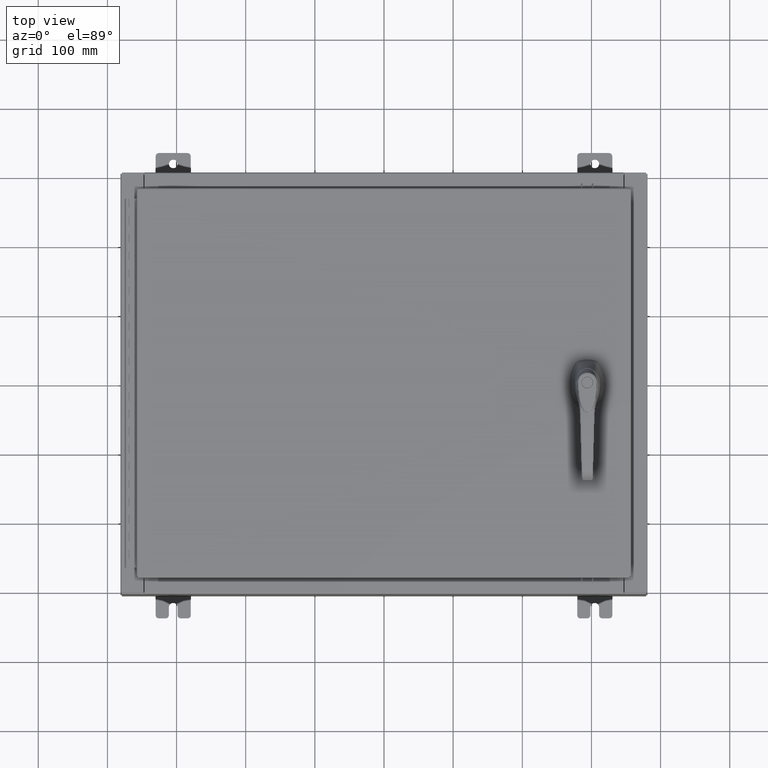
[diagram: clean part render]
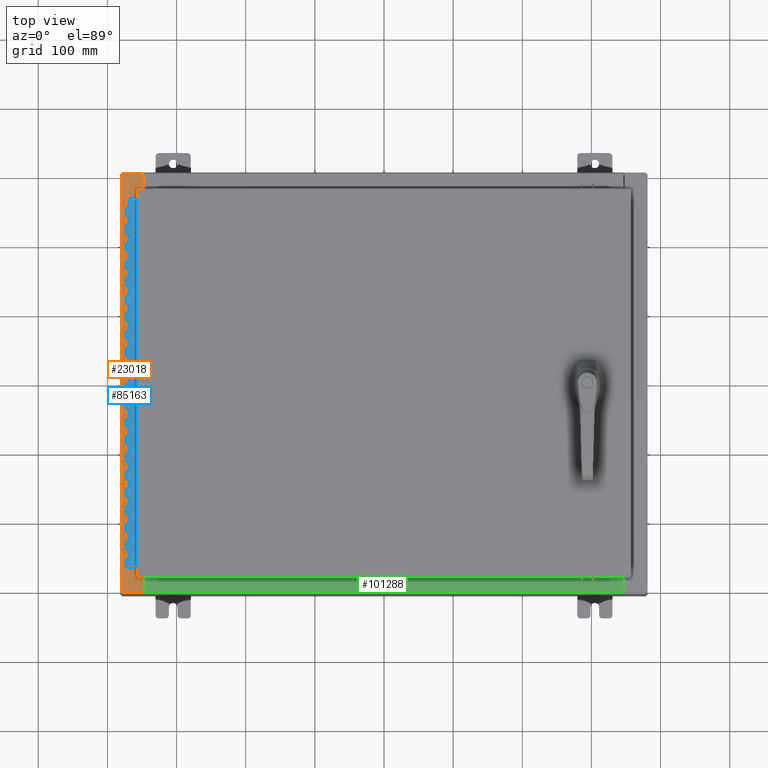
[diagram: same view with three faces highlighted in distinct colors, each labeled with its STEP entity id]
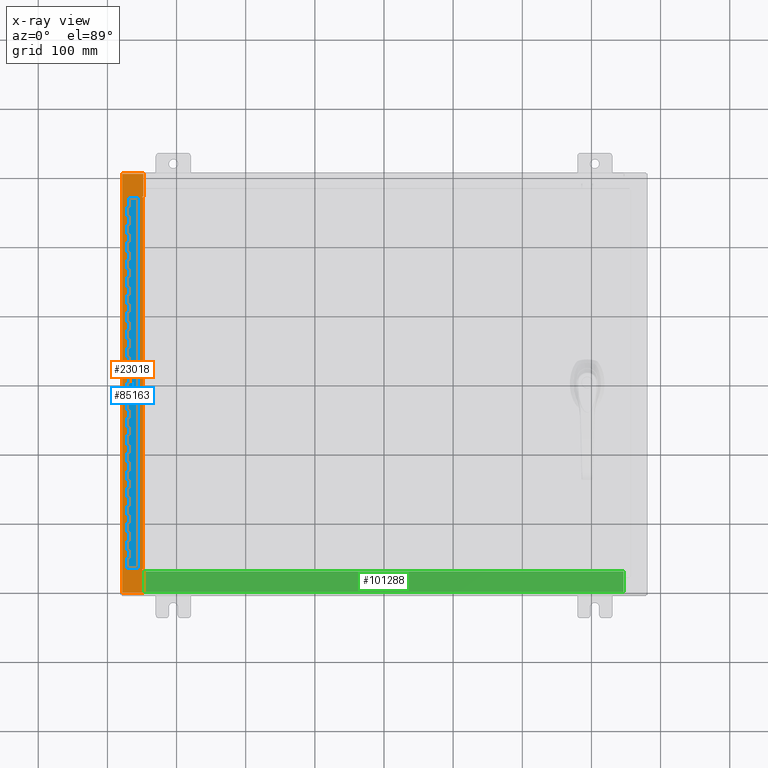
[diagram: x-ray of the same camera — body ghosted, the three highlighted faces saturated]
A machine part, top view with three faces highlighted in distinct colors.
The next image is the same camera in x-ray (body ghosted, the three faces saturated) — at least one of them is partly hidden behind the body in this view.
Their STEP definitions:

[orange] entity #23018 — the highlighted planar face has unit normal (0, 0, -1).
#674 = CARTESIAN_POINT ( 'NONE',  ( -5.679009539018309800E-014, -11.92530000000000000, 7.925300000000105700 ) ) ;
#4265 = AXIS2_PLACEMENT_3D ( 'NONE', #59564, #7143, #68329 ) ;
#6741 = LINE ( 'NONE', #674, #53255 ) ;
#7143 = DIRECTION ( 'NONE',  ( -7.132762385546384700E-015, -0.0000000000000000000, 1.000000000000000000 ) ) ;
#8149 = CIRCLE ( 'NONE', #12713, 0.01867499999999949400 ) ;
#9167 = ORIENTED_EDGE ( 'NONE', *, *, #80341, .F. ) ;
#9179 = DIRECTION ( 'NONE',  ( 1.000000000000000000, -0.0000000000000000000, 7.132762385546384700E-015 ) ) ;
#10628 = VECTOR ( 'NONE', #10648, 39.37007874015748100 ) ;
#10648 = DIRECTION ( 'NONE',  ( -1.000000000000000000, 0.0000000000000000000, 0.0000000000000000000 ) ) ;
#10823 = LINE ( 'NONE', #83739, #31301 ) ;
#12597 = DIRECTION ( 'NONE',  ( -0.0000000000000000000, -1.000000000000000000, -0.0000000000000000000 ) ) ;
#12713 = AXIS2_PLACEMENT_3D ( 'NONE', #95528, #42986, #104345 ) ;
#12978 = CARTESIAN_POINT ( 'NONE',  ( -13.75005000000002800, 10.63109999999999600, 7.925300000000007100 ) ) ;
#14035 = DIRECTION ( 'NONE',  ( -0.0000000000000000000, 1.000000000000000000, -0.0000000000000000000 ) ) ;
#15015 = VECTOR ( 'NONE', #50944, 39.37007874015748100 ) ;
#16739 = CARTESIAN_POINT ( 'NONE',  ( -5.679009539018309800E-014, 0.0000000000000000000, 7.925300000000105700 ) ) ;
#17482 = CARTESIAN_POINT ( 'NONE',  ( -13.69970000000003000, 10.63109999999999600, 7.925300000000008900 ) ) ;
#17780 = DIRECTION ( 'NONE',  ( 1.000000000000000000, 0.0000000000000000000, 0.0000000000000000000 ) ) ;
#18365 = ORIENTED_EDGE ( 'NONE', *, *, #34220, .F. ) ;
#18376 = DIRECTION ( 'NONE',  ( 1.000000000000000000, 0.0000000000000000000, 0.0000000000000000000 ) ) ;
#21334 = EDGE_CURVE ( 'NONE', #109143, #101156, #88980, .T. ) ;
#23018 = ADVANCED_FACE ( 'NONE', ( #59943 ), #77288, .F. ) ;
#23075 = CARTESIAN_POINT ( 'NONE',  ( -13.75005000000002800, 10.59374999999999800, 7.925300000000007100 ) ) ;
#23092 = ORIENTED_EDGE ( 'NONE', *, *, #83143, .T. ) ;
#23759 = ORIENTED_EDGE ( 'NONE', *, *, #102485, .F. ) ;
#25537 = DIRECTION ( 'NONE',  ( -1.000000000000000000, 0.0000000000000000000, -7.132762385546384700E-015 ) ) ;
#25644 = CIRCLE ( 'NONE', #4265, 0.01867499999999949400 ) ;
#25924 = ORIENTED_EDGE ( 'NONE', *, *, #31587, .T. ) ;
#26861 = VERTEX_POINT ( 'NONE', #42314 ) ;
#27834 = VERTEX_POINT ( 'NONE', #27950 ) ;
#27950 = CARTESIAN_POINT ( 'NONE',  ( -13.69970000000003000, 11.92529999999999800, 7.925300000000008900 ) ) ;
#28211 = EDGE_CURVE ( 'NONE', #27834, #57840, #35274, .T. ) ;
#28706 = EDGE_CURVE ( 'NONE', #88721, #93888, #57141, .T. ) ;
#28981 = EDGE_LOOP ( 'NONE', ( #23759, #25924, #33724, #38992, #23092, #39341, #52334, #18365, #55032, #9167, #77279, #36268 ) ) ;
#31126 = VERTEX_POINT ( 'NONE', #12978 ) ;
#31301 = VECTOR ( 'NONE', #14035, 39.37007874015748100 ) ;
#31587 = EDGE_CURVE ( 'NONE', #42546, #27834, #38297, .T. ) ;
#31819 = LINE ( 'NONE', #103310, #96259 ) ;
#33724 = ORIENTED_EDGE ( 'NONE', *, *, #28211, .T. ) ;
#34116 = CARTESIAN_POINT ( 'NONE',  ( -13.71270000000003000, 10.59374999999999800, 7.925300000000008900 ) ) ;
#34220 = EDGE_CURVE ( 'NONE', #93888, #109143, #25644, .T. ) ;
#35274 = LINE ( 'NONE', #110673, #58578 ) ;
#36268 = ORIENTED_EDGE ( 'NONE', *, *, #44778, .F. ) ;
#37431 = LINE ( 'NONE', #81336, #99143 ) ;
#38297 = LINE ( 'NONE', #94645, #15015 ) ;
#38992 = ORIENTED_EDGE ( 'NONE', *, *, #83577, .F. ) ;
#39341 = ORIENTED_EDGE ( 'NONE', *, *, #59962, .T. ) ;
#42314 = CARTESIAN_POINT ( 'NONE',  ( -13.69970000000003000, -11.92530000000000000, 7.925300000000008900 ) ) ;
#42546 = VERTEX_POINT ( 'NONE', #17482 ) ;
#42986 = DIRECTION ( 'NONE',  ( -7.132762385546384700E-015, -0.0000000000000000000, 1.000000000000000000 ) ) ;
#44778 = EDGE_CURVE ( 'NONE', #31126, #73736, #8149, .T. ) ;
#44781 = AXIS2_PLACEMENT_3D ( 'NONE', #16739, #78049, #25537 ) ;
#47598 = EDGE_CURVE ( 'NONE', #73736, #81059, #76462, .T. ) ;
#50903 = CARTESIAN_POINT ( 'NONE',  ( -13.75005000000002800, -10.63109999999999600, 7.925300000000007100 ) ) ;
#50944 = DIRECTION ( 'NONE',  ( 0.0000000000000000000, 1.000000000000000000, 0.0000000000000000000 ) ) ;
#52010 = VECTOR ( 'NONE', #12597, 39.37007874015748100 ) ;
#52334 = ORIENTED_EDGE ( 'NONE', *, *, #21334, .F. ) ;
#53148 = VECTOR ( 'NONE', #18376, 39.37007874015748100 ) ;
#53255 = VECTOR ( 'NONE', #9179, 39.37007874015748100 ) ;
#55032 = ORIENTED_EDGE ( 'NONE', *, *, #28706, .F. ) ;
#57141 = LINE ( 'NONE', #71830, #10628 ) ;
#57840 = VERTEX_POINT ( 'NONE', #75098 ) ;
#58578 = VECTOR ( 'NONE', #66944, 39.37007874015748100 ) ;
#59564 = CARTESIAN_POINT ( 'NONE',  ( -13.75005000000002800, -10.61242499999999800, 7.925300000000008900 ) ) ;
#59629 = DIRECTION ( 'NONE',  ( -1.000000000000000000, 0.0000000000000000000, 0.0000000000000000000 ) ) ;
#59943 = FACE_OUTER_BOUND ( 'NONE', #28981, .T. ) ;
#59962 = EDGE_CURVE ( 'NONE', #26861, #101156, #37431, .T. ) ;
#63701 = CARTESIAN_POINT ( 'NONE',  ( -14.91230000000002900, -11.92530000000000000, 7.925300000000000000 ) ) ;
#66944 = DIRECTION ( 'NONE',  ( -1.000000000000000000, 0.0000000000000000000, -7.132762385546384700E-015 ) ) ;
#68329 = DIRECTION ( 'NONE',  ( 1.000000000000000000, 0.0000000000000000000, 0.0000000000000000000 ) ) ;
#71239 = CARTESIAN_POINT ( 'NONE',  ( -13.75005000000002800, 10.59374999999999800, 7.925300000000008900 ) ) ;
#71830 = CARTESIAN_POINT ( 'NONE',  ( -13.71270000000003000, -10.59374999999999800, 7.925300000000008900 ) ) ;
#73736 = VERTEX_POINT ( 'NONE', #23075 ) ;
#75098 = CARTESIAN_POINT ( 'NONE',  ( -14.91230000000002900, 11.92529999999999800, 7.925300000000000000 ) ) ;
#75336 = LINE ( 'NONE', #108744, #52010 ) ;
#76462 = LINE ( 'NONE', #71239, #53148 ) ;
#77279 = ORIENTED_EDGE ( 'NONE', *, *, #47598, .F. ) ;
#77288 = PLANE ( 'NONE',  #44781 ) ;
#78049 = DIRECTION ( 'NONE',  ( 7.132762385546384700E-015, 0.0000000000000000000, -1.000000000000000000 ) ) ;
#80341 = EDGE_CURVE ( 'NONE', #81059, #88721, #75336, .T. ) ;
#81059 = VERTEX_POINT ( 'NONE', #34116 ) ;
#81336 = CARTESIAN_POINT ( 'NONE',  ( -13.69970000000003000, 0.0000000000000000000, 7.925300000000008900 ) ) ;
#81715 = DIRECTION ( 'NONE',  ( 0.0000000000000000000, 1.000000000000000000, 0.0000000000000000000 ) ) ;
#83143 = EDGE_CURVE ( 'NONE', #93987, #26861, #6741, .T. ) ;
#83577 = EDGE_CURVE ( 'NONE', #93987, #57840, #10823, .T. ) ;
#83739 = CARTESIAN_POINT ( 'NONE',  ( -14.91230000000002900, 11.92529999999999800, 7.925300000000000000 ) ) ;
#87112 = CARTESIAN_POINT ( 'NONE',  ( -13.75005000000002800, -10.63109999999999600, 7.925300000000008900 ) ) ;
#88721 = VERTEX_POINT ( 'NONE', #94941 ) ;
#88980 = LINE ( 'NONE', #87112, #104029 ) ;
#93888 = VERTEX_POINT ( 'NONE', #106616 ) ;
#93987 = VERTEX_POINT ( 'NONE', #63701 ) ;
#94645 = CARTESIAN_POINT ( 'NONE',  ( -13.69970000000003000, 0.0000000000000000000, 7.925300000000008900 ) ) ;
#94941 = CARTESIAN_POINT ( 'NONE',  ( -13.71270000000003000, -10.59374999999999800, 7.925300000000008900 ) ) ;
#95528 = CARTESIAN_POINT ( 'NONE',  ( -13.75005000000002800, 10.61242499999999800, 7.925300000000008900 ) ) ;
#96259 = VECTOR ( 'NONE', #59629, 39.37007874015748100 ) ;
#99143 = VECTOR ( 'NONE', #81715, 39.37007874015748100 ) ;
#101156 = VERTEX_POINT ( 'NONE', #102927 ) ;
#102485 = EDGE_CURVE ( 'NONE', #42546, #31126, #31819, .T. ) ;
#102927 = CARTESIAN_POINT ( 'NONE',  ( -13.69970000000003000, -10.63109999999999800, 7.925300000000008900 ) ) ;
#103310 = CARTESIAN_POINT ( 'NONE',  ( -13.69970000000003000, 10.63109999999999600, 7.925300000000008900 ) ) ;
#104029 = VECTOR ( 'NONE', #17780, 39.37007874015748100 ) ;
#104345 = DIRECTION ( 'NONE',  ( 1.000000000000000000, 0.0000000000000000000, 0.0000000000000000000 ) ) ;
#106616 = CARTESIAN_POINT ( 'NONE',  ( -13.75005000000002800, -10.59374999999999800, 7.925300000000007100 ) ) ;
#108744 = CARTESIAN_POINT ( 'NONE',  ( -13.71270000000003000, 10.59374999999999800, 7.925300000000008900 ) ) ;
#109143 = VERTEX_POINT ( 'NONE', #50903 ) ;
#110673 = CARTESIAN_POINT ( 'NONE',  ( -5.679009539018309800E-014, 11.92529999999999800, 7.925300000000105700 ) ) ;

[blue] entity #85163 — the highlighted planar face has unit normal (-0, -0, 1).
#627 = EDGE_CURVE ( 'NONE', #53915, #77868, #18176, .T. ) ;
#864 = ORIENTED_EDGE ( 'NONE', *, *, #10019, .F. ) ;
#971 = FACE_OUTER_BOUND ( 'NONE', #65800, .T. ) ;
#1178 = VERTEX_POINT ( 'NONE', #112586 ) ;
#1197 = VECTOR ( 'NONE', #62709, 39.37007874015748100 ) ;
#1241 = EDGE_CURVE ( 'NONE', #87291, #112366, #78419, .T. ) ;
#1837 = CARTESIAN_POINT ( 'NONE',  ( -0.6869999999999973900, 0.8004999999999995500, -7.000000000000000000 ) ) ;
#1938 = EDGE_CURVE ( 'NONE', #88454, #47920, #16635, .T. ) ;
#2207 = VERTEX_POINT ( 'NONE', #100563 ) ;
#2222 = LINE ( 'NONE', #100368, #92670 ) ;
#2271 = DIRECTION ( 'NONE',  ( 0.0000000000000000000, 0.0000000000000000000, 1.000000000000000000 ) ) ;
#2473 = DIRECTION ( 'NONE',  ( 0.0000000000000000000, 0.0000000000000000000, 1.000000000000000000 ) ) ;
#2726 = CARTESIAN_POINT ( 'NONE',  ( -0.6869999999999982800, 0.5504999999999997700, -18.50000000000000000 ) ) ;
#2854 = VERTEX_POINT ( 'NONE', #101694 ) ;
#2950 = DIRECTION ( 'NONE',  ( -3.389037039080723100E-015, -1.000000000000000000, 0.0000000000000000000 ) ) ;
#3006 = ORIENTED_EDGE ( 'NONE', *, *, #23876, .T. ) ;
#3151 = CARTESIAN_POINT ( 'NONE',  ( -0.6869999999999982800, 0.5504999999999997700, -5.500000000000000000 ) ) ;
#3188 = VECTOR ( 'NONE', #2271, 39.37007874015748100 ) ;
#3438 = VERTEX_POINT ( 'NONE', #7222 ) ;
#3622 = DIRECTION ( 'NONE',  ( 0.0000000000000000000, 0.0000000000000000000, 1.000000000000000000 ) ) ;
#3772 = EDGE_CURVE ( 'NONE', #65507, #16257, #86342, .T. ) ;
#3862 = VECTOR ( 'NONE', #76698, 39.37007874015748100 ) ;
#4483 = LINE ( 'NONE', #63074, #71574 ) ;
#4719 = DIRECTION ( 'NONE',  ( -3.389037039080723100E-015, -1.000000000000000000, 0.0000000000000000000 ) ) ;
#4805 = LINE ( 'NONE', #112660, #48588 ) ;
#5349 = CARTESIAN_POINT ( 'NONE',  ( -0.6869999999999982800, 0.5504999999999997700, -13.50000000000000000 ) ) ;
#5382 = LINE ( 'NONE', #21788, #25869 ) ;
#5793 = ORIENTED_EDGE ( 'NONE', *, *, #110977, .T. ) ;
#6036 = EDGE_CURVE ( 'NONE', #101429, #26097, #17523, .T. ) ;
#6386 = EDGE_CURVE ( 'NONE', #79633, #71993, #21600, .T. ) ;
#6648 = VERTEX_POINT ( 'NONE', #84459 ) ;
#7222 = CARTESIAN_POINT ( 'NONE',  ( -0.6869999999999982800, 0.5504999999999997700, -15.50000000000000000 ) ) ;
#7436 = EDGE_CURVE ( 'NONE', #95110, #77868, #21484, .T. ) ;
#7506 = CARTESIAN_POINT ( 'NONE',  ( -0.6869999999999982800, 0.5504999999999997700, -16.50000000000000000 ) ) ;
#7520 = EDGE_CURVE ( 'NONE', #26097, #6648, #106486, .T. ) ;
#7595 = EDGE_CURVE ( 'NONE', #71079, #55391, #80405, .T. ) ;
#7912 = EDGE_CURVE ( 'NONE', #95110, #59600, #84481, .T. ) ;
#8052 = VECTOR ( 'NONE', #14966, 39.37007874015748100 ) ;
#8217 = ORIENTED_EDGE ( 'NONE', *, *, #47671, .F. ) ;
#8234 = ORIENTED_EDGE ( 'NONE', *, *, #111167, .F. ) ;
#8414 = LINE ( 'NONE', #90729, #52179 ) ;
#8843 = CARTESIAN_POINT ( 'NONE',  ( -0.6869999999999973900, 0.8004999999999995500, -14.00000000000000000 ) ) ;
#9178 = VERTEX_POINT ( 'NONE', #38736 ) ;
#9275 = LINE ( 'NONE', #43143, #55820 ) ;
#9383 = LINE ( 'NONE', #92817, #3862 ) ;
#9592 = ORIENTED_EDGE ( 'NONE', *, *, #79777, .F. ) ;
#9708 = ORIENTED_EDGE ( 'NONE', *, *, #113352, .F. ) ;
#9713 = EDGE_CURVE ( 'NONE', #65507, #30735, #34914, .T. ) ;
#9892 = ORIENTED_EDGE ( 'NONE', *, *, #80921, .F. ) ;
#9915 = VERTEX_POINT ( 'NONE', #55414 ) ;
#9981 = CARTESIAN_POINT ( 'NONE',  ( -0.6869999999999973900, 0.8004999999999995500, -19.50000000000000000 ) ) ;
#10019 = EDGE_CURVE ( 'NONE', #78632, #87291, #41677, .T. ) ;
#10519 = CARTESIAN_POINT ( 'NONE',  ( -0.6869999999999978300, 0.6754999999999996600, -8.000000000000000000 ) ) ;
#10614 = DIRECTION ( 'NONE',  ( -3.389037039080723100E-015, -1.000000000000000000, 0.0000000000000000000 ) ) ;
#10664 = CARTESIAN_POINT ( 'NONE',  ( -0.6869999999999982800, 0.5504999999999997700, -17.99999999999999600 ) ) ;
#10996 = DIRECTION ( 'NONE',  ( 0.0000000000000000000, -0.0000000000000000000, -1.000000000000000000 ) ) ;
#11003 = LINE ( 'NONE', #111840, #104156 ) ;
#11017 = ORIENTED_EDGE ( 'NONE', *, *, #14987, .F. ) ;
#11187 = CARTESIAN_POINT ( 'NONE',  ( -0.6869999999999998300, 0.07549999999999991400, -21.00000000000000000 ) ) ;
#11325 = CARTESIAN_POINT ( 'NONE',  ( -0.6869999999999978300, 0.6754999999999996600, -14.49999999999999800 ) ) ;
#11342 = VECTOR ( 'NONE', #46912, 39.37007874015748100 ) ;
#11555 = DIRECTION ( 'NONE',  ( 0.0000000000000000000, -0.0000000000000000000, -1.000000000000000000 ) ) ;
#11706 = EDGE_CURVE ( 'NONE', #71993, #54439, #2222, .T. ) ;
#11755 = CARTESIAN_POINT ( 'NONE',  ( -0.6869999999999978300, 0.6754999999999996600, -1.000000000000000000 ) ) ;
#11843 = ORIENTED_EDGE ( 'NONE', *, *, #7595, .F. ) ;
#12111 = DIRECTION ( 'NONE',  ( 3.389037039080723100E-015, 1.000000000000000000, -0.0000000000000000000 ) ) ;
#12133 = DIRECTION ( 'NONE',  ( -3.389037039080723100E-015, -1.000000000000000000, 0.0000000000000000000 ) ) ;
#12185 = DIRECTION ( 'NONE',  ( -3.389037039080723100E-015, -1.000000000000000000, 0.0000000000000000000 ) ) ;
#12431 = ORIENTED_EDGE ( 'NONE', *, *, #68960, .F. ) ;
#12631 = LINE ( 'NONE', #64920, #33139 ) ;
#12758 = DIRECTION ( 'NONE',  ( 3.389037039080723100E-015, 1.000000000000000000, -0.0000000000000000000 ) ) ;
#12827 = ORIENTED_EDGE ( 'NONE', *, *, #47688, .F. ) ;
#12834 = VERTEX_POINT ( 'NONE', #46053 ) ;
#12862 = CARTESIAN_POINT ( 'NONE',  ( -0.6869999999999973900, 0.8004999999999995500, -2.500000000000000000 ) ) ;
#13012 = DIRECTION ( 'NONE',  ( 0.0000000000000000000, 0.0000000000000000000, 1.000000000000000000 ) ) ;
#13052 = DIRECTION ( 'NONE',  ( 0.0000000000000000000, 0.0000000000000000000, 1.000000000000000000 ) ) ;
#13198 = VERTEX_POINT ( 'NONE', #59047 ) ;
#13534 = CARTESIAN_POINT ( 'NONE',  ( -0.6869999999999978300, 0.6754999999999996600, -20.00000000000000000 ) ) ;
#13538 = VECTOR ( 'NONE', #80224, 39.37007874015748100 ) ;
#13548 = DIRECTION ( 'NONE',  ( 0.0000000000000000000, -0.0000000000000000000, -1.000000000000000000 ) ) ;
#13636 = DIRECTION ( 'NONE',  ( 3.389037039080723100E-015, 1.000000000000000000, -0.0000000000000000000 ) ) ;
#14193 = LINE ( 'NONE', #63314, #16893 ) ;
#14202 = DIRECTION ( 'NONE',  ( -3.389037039080723100E-015, -1.000000000000000000, 0.0000000000000000000 ) ) ;
#14354 = EDGE_CURVE ( 'NONE', #73159, #68515, #61025, .T. ) ;
#14643 = ORIENTED_EDGE ( 'NONE', *, *, #39883, .F. ) ;
#14966 = DIRECTION ( 'NONE',  ( 0.0000000000000000000, 0.0000000000000000000, 1.000000000000000000 ) ) ;
#14987 = EDGE_CURVE ( 'NONE', #88737, #62724, #4805, .T. ) ;
#15060 = VECTOR ( 'NONE', #111388, 39.37007874015748100 ) ;
#15151 = DIRECTION ( 'NONE',  ( 3.389037039080723100E-015, 1.000000000000000000, -0.0000000000000000000 ) ) ;
#15575 = CARTESIAN_POINT ( 'NONE',  ( -0.6869999999999978300, 0.6754999999999996600, -5.000000000000000000 ) ) ;
#16211 = VECTOR ( 'NONE', #99117, 39.37007874015748100 ) ;
#16215 = LINE ( 'NONE', #80960, #83407 ) ;
#16257 = VERTEX_POINT ( 'NONE', #91353 ) ;
#16375 = ORIENTED_EDGE ( 'NONE', *, *, #1938, .F. ) ;
#16424 = LINE ( 'NONE', #85490, #36989 ) ;
#16530 = CARTESIAN_POINT ( 'NONE',  ( -0.6869999999999978300, 0.6754999999999996600, -7.000000000000000000 ) ) ;
#16531 = LINE ( 'NONE', #98184, #34369 ) ;
#16635 = LINE ( 'NONE', #85839, #39932 ) ;
#16893 = VECTOR ( 'NONE', #45289, 39.37007874015748100 ) ;
#17520 = VECTOR ( 'NONE', #38744, 39.37007874015748100 ) ;
#17523 = LINE ( 'NONE', #72591, #38074 ) ;
#17640 = LINE ( 'NONE', #24206, #108182 ) ;
#17705 = CARTESIAN_POINT ( 'NONE',  ( -0.6869999999999978300, 0.6754999999999996600, -14.00000000000000000 ) ) ;
#17728 = VECTOR ( 'NONE', #52125, 39.37007874015748100 ) ;
#17779 = ORIENTED_EDGE ( 'NONE', *, *, #55027, .F. ) ;
#18006 = ORIENTED_EDGE ( 'NONE', *, *, #83422, .F. ) ;
#18141 = VERTEX_POINT ( 'NONE', #99929 ) ;
#18176 = LINE ( 'NONE', #109965, #41457 ) ;
#18686 = DIRECTION ( 'NONE',  ( -3.389037039080723100E-015, -1.000000000000000000, 0.0000000000000000000 ) ) ;
#18712 = CARTESIAN_POINT ( 'NONE',  ( -0.6869999999999978300, 0.6754999999999996600, -15.50000000000000000 ) ) ;
#18720 = EDGE_CURVE ( 'NONE', #75662, #100404, #31687, .T. ) ;
#18944 = LINE ( 'NONE', #48460, #39487 ) ;
#19332 = CARTESIAN_POINT ( 'NONE',  ( -0.6869999999999973900, 0.8004999999999995500, -1.000000000000000000 ) ) ;
#19349 = CARTESIAN_POINT ( 'NONE',  ( -0.6869999999999978300, 0.6754999999999996600, -21.00000000000000000 ) ) ;
#19399 = DIRECTION ( 'NONE',  ( 1.000000000000000000, -3.369016658928398200E-015, 0.0000000000000000000 ) ) ;
#19704 = CARTESIAN_POINT ( 'NONE',  ( -0.6869999999999978300, 0.6754999999999996600, -21.00000000000000000 ) ) ;
#19719 = DIRECTION ( 'NONE',  ( -3.389037039080723100E-015, -1.000000000000000000, 0.0000000000000000000 ) ) ;
#19899 = DIRECTION ( 'NONE',  ( 0.0000000000000000000, 0.0000000000000000000, 1.000000000000000000 ) ) ;
#20062 = VERTEX_POINT ( 'NONE', #61374 ) ;
#20105 = CARTESIAN_POINT ( 'NONE',  ( -0.6869999999999973900, 0.8004999999999995500, -9.500000000000000000 ) ) ;
#20174 = EDGE_CURVE ( 'NONE', #55391, #73226, #30165, .T. ) ;
#20512 = LINE ( 'NONE', #19704, #111025 ) ;
#20523 = EDGE_CURVE ( 'NONE', #70961, #111790, #11003, .T. ) ;
#20576 = ORIENTED_EDGE ( 'NONE', *, *, #77721, .F. ) ;
#21028 = LINE ( 'NONE', #35646, #23754 ) ;
#21035 = EDGE_CURVE ( 'NONE', #1178, #9915, #30070, .T. ) ;
#21189 = DIRECTION ( 'NONE',  ( 0.0000000000000000000, 0.0000000000000000000, 1.000000000000000000 ) ) ;
#21387 = LINE ( 'NONE', #19349, #88560 ) ;
#21484 = LINE ( 'NONE', #65442, #85901 ) ;
#21600 = LINE ( 'NONE', #12862, #68170 ) ;
#21788 = CARTESIAN_POINT ( 'NONE',  ( -0.6869999999999982800, 0.5504999999999997700, -7.499999999999999100 ) ) ;
#21797 = CARTESIAN_POINT ( 'NONE',  ( -0.6869999999999978300, 0.6754999999999996600, -7.499999999999999100 ) ) ;
#22040 = AXIS2_PLACEMENT_3D ( 'NONE', #54230, #19399, #80685 ) ;
#22060 = LINE ( 'NONE', #64895, #45360 ) ;
#22126 = ORIENTED_EDGE ( 'NONE', *, *, #40723, .F. ) ;
#22253 = CARTESIAN_POINT ( 'NONE',  ( -0.6869999999999973900, 0.8004999999999995500, -17.50000000000000000 ) ) ;
#22761 = VERTEX_POINT ( 'NONE', #110694 ) ;
#22971 = CARTESIAN_POINT ( 'NONE',  ( -0.6869999999999982800, 0.5504999999999997700, -20.50000000000000400 ) ) ;
#23739 = VERTEX_POINT ( 'NONE', #89441 ) ;
#23749 = CARTESIAN_POINT ( 'NONE',  ( -0.6869999999999978300, 0.6754999999999996600, -21.00000000000000000 ) ) ;
#23754 = VECTOR ( 'NONE', #88132, 39.37007874015748100 ) ;
#23876 = EDGE_CURVE ( 'NONE', #71079, #104026, #22060, .T. ) ;
#24185 = DIRECTION ( 'NONE',  ( 0.0000000000000000000, 0.0000000000000000000, 1.000000000000000000 ) ) ;
#24206 = CARTESIAN_POINT ( 'NONE',  ( -0.6870000000000022800, -0.6245000000000003900, 0.0000000000000000000 ) ) ;
#24243 = VERTEX_POINT ( 'NONE', #88531 ) ;
#24465 = LINE ( 'NONE', #1837, #1197 ) ;
#24497 = VERTEX_POINT ( 'NONE', #82019 ) ;
#24556 = CARTESIAN_POINT ( 'NONE',  ( -0.6869999999999982800, 0.5504999999999997700, -6.499999999999999100 ) ) ;
#24638 = ORIENTED_EDGE ( 'NONE', *, *, #80223, .F. ) ;
#24862 = CARTESIAN_POINT ( 'NONE',  ( -0.6869999999999982800, 0.5504999999999997700, -4.000000000000000000 ) ) ;
#25120 = VECTOR ( 'NONE', #59568, 39.37007874015748100 ) ;
#25216 = DIRECTION ( 'NONE',  ( 3.389037039080723100E-015, 1.000000000000000000, -0.0000000000000000000 ) ) ;
#25496 = EDGE_CURVE ( 'NONE', #91596, #1178, #87704, .T. ) ;
#25514 = EDGE_CURVE ( 'NONE', #29836, #82359, #38343, .T. ) ;
#25869 = VECTOR ( 'NONE', #100363, 39.37007874015748100 ) ;
#25982 = VECTOR ( 'NONE', #32815, 39.37007874015748100 ) ;
#26030 = CARTESIAN_POINT ( 'NONE',  ( -0.6869999999999978300, 0.6754999999999996600, 0.0000000000000000000 ) ) ;
#26095 = CARTESIAN_POINT ( 'NONE',  ( -0.6869999999999978300, 0.6754999999999996600, -21.00000000000000000 ) ) ;
#26097 = VERTEX_POINT ( 'NONE', #73324 ) ;
#26147 = CARTESIAN_POINT ( 'NONE',  ( -0.6869999999999982800, 0.5504999999999997700, -10.50000000000000000 ) ) ;
#26221 = CARTESIAN_POINT ( 'NONE',  ( -0.6869999999999978300, 0.6754999999999996600, -0.5000000000000000000 ) ) ;
#26884 = EDGE_CURVE ( 'NONE', #78632, #86547, #34091, .T. ) ;
#26966 = VERTEX_POINT ( 'NONE', #63384 ) ;
#27297 = VECTOR ( 'NONE', #15151, 39.37007874015748100 ) ;
#27600 = CARTESIAN_POINT ( 'NONE',  ( -0.6869999999999982800, 0.5504999999999997700, -9.500000000000000000 ) ) ;
#27849 = VECTOR ( 'NONE', #25216, 39.37007874015748100 ) ;
#27888 = CARTESIAN_POINT ( 'NONE',  ( -0.6869999999999978300, 0.6754999999999996600, -21.00000000000000000 ) ) ;
#27893 = CARTESIAN_POINT ( 'NONE',  ( -0.6869999999999978300, 0.6754999999999996600, -19.00000000000000000 ) ) ;
#28103 = LINE ( 'NONE', #109269, #95271 ) ;
#28423 = CARTESIAN_POINT ( 'NONE',  ( -0.6869999999999982800, 0.5504999999999997700, -5.000000000000000000 ) ) ;
#28872 = CARTESIAN_POINT ( 'NONE',  ( -0.6869999999999978300, 0.6754999999999996600, -21.00000000000000000 ) ) ;
#28985 = ORIENTED_EDGE ( 'NONE', *, *, #51249, .T. ) ;
#29024 = CARTESIAN_POINT ( 'NONE',  ( -0.6869999999999973900, 0.8004999999999995500, -6.499999999999999100 ) ) ;
#29065 = ORIENTED_EDGE ( 'NONE', *, *, #65735, .F. ) ;
#29079 = EDGE_CURVE ( 'NONE', #111790, #50541, #81794, .T. ) ;
#29141 = DIRECTION ( 'NONE',  ( 3.389037039080723100E-015, 1.000000000000000000, -0.0000000000000000000 ) ) ;
#29213 = CARTESIAN_POINT ( 'NONE',  ( -0.6869999999999998300, 0.07549999999999991400, -21.00000000000000000 ) ) ;
#29336 = VECTOR ( 'NONE', #31454, 39.37007874015748100 ) ;
#29351 = DIRECTION ( 'NONE',  ( 0.0000000000000000000, -0.0000000000000000000, -1.000000000000000000 ) ) ;
#29820 = DIRECTION ( 'NONE',  ( 3.389037039080723100E-015, 1.000000000000000000, -0.0000000000000000000 ) ) ;
#29836 = VERTEX_POINT ( 'NONE', #66330 ) ;
#29906 = LINE ( 'NONE', #106904, #94278 ) ;
#30070 = LINE ( 'NONE', #58830, #27297 ) ;
#30165 = LINE ( 'NONE', #3151, #74005 ) ;
#30259 = EDGE_CURVE ( 'NONE', #79633, #2854, #16531, .T. ) ;
#30474 = ORIENTED_EDGE ( 'NONE', *, *, #70812, .F. ) ;
#30492 = ORIENTED_EDGE ( 'NONE', *, *, #59624, .F. ) ;
#30735 = VERTEX_POINT ( 'NONE', #95386 ) ;
#31061 = CARTESIAN_POINT ( 'NONE',  ( -0.6869999999999973900, 0.8004999999999995500, -12.49999999999999800 ) ) ;
#31145 = CARTESIAN_POINT ( 'NONE',  ( -0.6869999999999978300, 0.6754999999999996600, -11.99999999999999800 ) ) ;
#31454 = DIRECTION ( 'NONE',  ( 3.369016658928398200E-015, 1.000000000000000000, 0.0000000000000000000 ) ) ;
#31687 = LINE ( 'NONE', #108647, #96123 ) ;
#32135 = ORIENTED_EDGE ( 'NONE', *, *, #62681, .F. ) ;
#32438 = CARTESIAN_POINT ( 'NONE',  ( -0.6869999999999982800, 0.5504999999999997700, -19.50000000000000000 ) ) ;
#32697 = ORIENTED_EDGE ( 'NONE', *, *, #41743, .F. ) ;
#32815 = DIRECTION ( 'NONE',  ( -3.389037039080723100E-015, -1.000000000000000000, 0.0000000000000000000 ) ) ;
#33139 = VECTOR ( 'NONE', #12111, 39.37007874015748100 ) ;
#33225 = VERTEX_POINT ( 'NONE', #82780 ) ;
#33712 = VECTOR ( 'NONE', #4719, 39.37007874015748100 ) ;
#33799 = DIRECTION ( 'NONE',  ( 3.389037039080723100E-015, 1.000000000000000000, -0.0000000000000000000 ) ) ;
#34032 = CARTESIAN_POINT ( 'NONE',  ( -0.6869999999999978300, 0.6754999999999996600, -21.00000000000000000 ) ) ;
#34091 = LINE ( 'NONE', #53799, #13538 ) ;
#34369 = VECTOR ( 'NONE', #106997, 39.37007874015748100 ) ;
#34379 = CARTESIAN_POINT ( 'NONE',  ( -0.6869999999999982800, 0.5504999999999997700, -2.500000000000000000 ) ) ;
#34423 = ORIENTED_EDGE ( 'NONE', *, *, #107892, .F. ) ;
#34914 = LINE ( 'NONE', #61977, #55483 ) ;
#35277 = ORIENTED_EDGE ( 'NONE', *, *, #49350, .T. ) ;
#35646 = CARTESIAN_POINT ( 'NONE',  ( -0.6869999999999973900, 0.8004999999999995500, -15.50000000000000000 ) ) ;
#35877 = CARTESIAN_POINT ( 'NONE',  ( -0.6869999999999982800, 0.5504999999999997700, -0.5000000000000000000 ) ) ;
#36224 = VERTEX_POINT ( 'NONE', #49031 ) ;
#36431 = LINE ( 'NONE', #94744, #74799 ) ;
#36530 = VECTOR ( 'NONE', #75000, 39.37007874015748100 ) ;
#36586 = VERTEX_POINT ( 'NONE', #92360 ) ;
#36604 = EDGE_CURVE ( 'NONE', #40633, #9178, #78651, .T. ) ;
#36989 = VECTOR ( 'NONE', #24185, 39.37007874015748100 ) ;
#37302 = CARTESIAN_POINT ( 'NONE',  ( -0.6869999999999978300, 0.6754999999999996600, -13.50000000000000000 ) ) ;
#37325 = CARTESIAN_POINT ( 'NONE',  ( -0.6869999999999982800, 0.5504999999999997700, -3.500000000000000000 ) ) ;
#37348 = LINE ( 'NONE', #65996, #60679 ) ;
#37441 = CARTESIAN_POINT ( 'NONE',  ( -0.6869999999999982800, 0.5504999999999997700, -7.000000000000000000 ) ) ;
#37903 = CARTESIAN_POINT ( 'NONE',  ( -0.6869999999999982800, 0.5504999999999997700, -12.49999999999999800 ) ) ;
#38016 = DIRECTION ( 'NONE',  ( 0.0000000000000000000, 0.0000000000000000000, 1.000000000000000000 ) ) ;
#38026 = ORIENTED_EDGE ( 'NONE', *, *, #110671, .F. ) ;
#38074 = VECTOR ( 'NONE', #68784, 39.37007874015748100 ) ;
#38164 = LINE ( 'NONE', #84175, #82075 ) ;
#38343 = LINE ( 'NONE', #32438, #15060 ) ;
#38386 = VECTOR ( 'NONE', #14202, 39.37007874015748100 ) ;
#38449 = ORIENTED_EDGE ( 'NONE', *, *, #9713, .T. ) ;
#38564 = DIRECTION ( 'NONE',  ( 0.0000000000000000000, -0.0000000000000000000, -1.000000000000000000 ) ) ;
#38663 = DIRECTION ( 'NONE',  ( -3.389037039080723100E-015, -1.000000000000000000, 0.0000000000000000000 ) ) ;
#38688 = DIRECTION ( 'NONE',  ( 3.389037039080723100E-015, 1.000000000000000000, -0.0000000000000000000 ) ) ;
#38736 = CARTESIAN_POINT ( 'NONE',  ( -0.6869999999999982800, 0.5504999999999997700, -21.00000000000000000 ) ) ;
#38744 = DIRECTION ( 'NONE',  ( 0.0000000000000000000, -0.0000000000000000000, -1.000000000000000000 ) ) ;
#38789 = VERTEX_POINT ( 'NONE', #24862 ) ;
#39487 = VECTOR ( 'NONE', #13636, 39.37007874015748100 ) ;
#39717 = VECTOR ( 'NONE', #93426, 39.37007874015748100 ) ;
#39883 = EDGE_CURVE ( 'NONE', #59600, #88737, #37348, .T. ) ;
#39901 = VECTOR ( 'NONE', #72433, 39.37007874015748100 ) ;
#39932 = VECTOR ( 'NONE', #41753, 39.37007874015748100 ) ;
#40633 = VERTEX_POINT ( 'NONE', #29213 ) ;
#40723 = EDGE_CURVE ( 'NONE', #54439, #30735, #42711, .T. ) ;
#40822 = VECTOR ( 'NONE', #71797, 39.37007874015748100 ) ;
#40999 = ORIENTED_EDGE ( 'NONE', *, *, #102084, .F. ) ;
#41128 = LINE ( 'NONE', #31061, #38386 ) ;
#41183 = CARTESIAN_POINT ( 'NONE',  ( -0.6869999999999978300, 0.6754999999999996600, -17.00000000000000000 ) ) ;
#41216 = DIRECTION ( 'NONE',  ( 0.0000000000000000000, -0.0000000000000000000, -1.000000000000000000 ) ) ;
#41457 = VECTOR ( 'NONE', #29141, 39.37007874015748100 ) ;
#41540 = CARTESIAN_POINT ( 'NONE',  ( -0.6869999999999978300, 0.6754999999999996600, -18.50000000000000000 ) ) ;
#41625 = VERTEX_POINT ( 'NONE', #37441 ) ;
#41677 = LINE ( 'NONE', #64628, #88337 ) ;
#41743 = EDGE_CURVE ( 'NONE', #52909, #41625, #8414, .T. ) ;
#41753 = DIRECTION ( 'NONE',  ( 0.0000000000000000000, -0.0000000000000000000, -1.000000000000000000 ) ) ;
#41757 = CARTESIAN_POINT ( 'NONE',  ( -0.6869999999999982800, 0.5504999999999997700, -6.000000000000000900 ) ) ;
#42241 = VECTOR ( 'NONE', #44544, 39.37007874015748100 ) ;
#42331 = LINE ( 'NONE', #27888, #62931 ) ;
#42405 = CARTESIAN_POINT ( 'NONE',  ( -0.6869999999999982800, 0.5504999999999997700, -9.000000000000000000 ) ) ;
#42711 = LINE ( 'NONE', #100061, #60580 ) ;
#43143 = CARTESIAN_POINT ( 'NONE',  ( -0.6869999999999973900, 0.8004999999999995500, -10.50000000000000000 ) ) ;
#43244 = CARTESIAN_POINT ( 'NONE',  ( -0.6869999999999978300, 0.6754999999999996600, -4.000000000000000000 ) ) ;
#43340 = LINE ( 'NONE', #109535, #90002 ) ;
#43439 = LINE ( 'NONE', #83108, #87331 ) ;
#43544 = LINE ( 'NONE', #56412, #17520 ) ;
#43952 = ORIENTED_EDGE ( 'NONE', *, *, #44354, .F. ) ;
#44046 = EDGE_CURVE ( 'NONE', #23739, #79825, #96629, .T. ) ;
#44354 = EDGE_CURVE ( 'NONE', #102241, #85225, #100010, .T. ) ;
#44544 = DIRECTION ( 'NONE',  ( 0.0000000000000000000, -0.0000000000000000000, -1.000000000000000000 ) ) ;
#44895 = VECTOR ( 'NONE', #19899, 39.37007874015748100 ) ;
#45012 = LINE ( 'NONE', #79828, #42241 ) ;
#45153 = EDGE_CURVE ( 'NONE', #47392, #64372, #108166, .T. ) ;
#45187 = ORIENTED_EDGE ( 'NONE', *, *, #47047, .T. ) ;
#45245 = CARTESIAN_POINT ( 'NONE',  ( -0.6869999999999982800, 0.5504999999999997700, -11.50000000000000000 ) ) ;
#45289 = DIRECTION ( 'NONE',  ( 0.0000000000000000000, -0.0000000000000000000, -1.000000000000000000 ) ) ;
#45360 = VECTOR ( 'NONE', #21189, 39.37007874015748100 ) ;
#46009 = VERTEX_POINT ( 'NONE', #17705 ) ;
#46053 = CARTESIAN_POINT ( 'NONE',  ( -0.6869999999999982800, 0.5504999999999997700, -16.00000000000000000 ) ) ;
#46529 = DIRECTION ( 'NONE',  ( 0.0000000000000000000, -0.0000000000000000000, -1.000000000000000000 ) ) ;
#46599 = DIRECTION ( 'NONE',  ( 3.389037039080723100E-015, 1.000000000000000000, -0.0000000000000000000 ) ) ;
#46912 = DIRECTION ( 'NONE',  ( 3.389037039080723100E-015, 1.000000000000000000, -0.0000000000000000000 ) ) ;
#46964 = ORIENTED_EDGE ( 'NONE', *, *, #57791, .F. ) ;
#46966 = EDGE_CURVE ( 'NONE', #61552, #33225, #45012, .T. ) ;
#47047 = EDGE_CURVE ( 'NONE', #70564, #74922, #16215, .T. ) ;
#47392 = VERTEX_POINT ( 'NONE', #94674 ) ;
#47487 = CARTESIAN_POINT ( 'NONE',  ( -0.6869999999999978300, 0.6754999999999996600, -17.99999999999999600 ) ) ;
#47608 = CARTESIAN_POINT ( 'NONE',  ( -0.6869999999999978300, 0.6754999999999996600, -4.500000000000000000 ) ) ;
#47671 = EDGE_CURVE ( 'NONE', #107361, #66949, #29906, .T. ) ;
#47688 = EDGE_CURVE ( 'NONE', #40633, #60126, #91571, .T. ) ;
#47747 = EDGE_CURVE ( 'NONE', #2207, #24497, #112120, .T. ) ;
#47783 = ORIENTED_EDGE ( 'NONE', *, *, #29079, .F. ) ;
#47920 = VERTEX_POINT ( 'NONE', #66585 ) ;
#47974 = VECTOR ( 'NONE', #70043, 39.37007874015748100 ) ;
#48050 = CARTESIAN_POINT ( 'NONE',  ( -0.6869999999999973900, 0.8004999999999995500, -17.00000000000000000 ) ) ;
#48166 = DIRECTION ( 'NONE',  ( 0.0000000000000000000, 0.0000000000000000000, 1.000000000000000000 ) ) ;
#48296 = ORIENTED_EDGE ( 'NONE', *, *, #91250, .T. ) ;
#48312 = ORIENTED_EDGE ( 'NONE', *, *, #81613, .F. ) ;
#48407 = ORIENTED_EDGE ( 'NONE', *, *, #104319, .F. ) ;
#48460 = CARTESIAN_POINT ( 'NONE',  ( -0.6869999999999973900, 0.8004999999999995500, -5.000000000000000000 ) ) ;
#48588 = VECTOR ( 'NONE', #103812, 39.37007874015748100 ) ;
#48594 = ORIENTED_EDGE ( 'NONE', *, *, #69475, .T. ) ;
#48786 = EDGE_CURVE ( 'NONE', #81275, #9915, #65364, .T. ) ;
#49031 = CARTESIAN_POINT ( 'NONE',  ( -0.6869999999999982800, 0.5504999999999997700, -2.000000000000000000 ) ) ;
#49350 = EDGE_CURVE ( 'NONE', #23739, #63975, #75549, .T. ) ;
#49366 = DIRECTION ( 'NONE',  ( -3.389037039080723100E-015, -1.000000000000000000, 0.0000000000000000000 ) ) ;
#50249 = DIRECTION ( 'NONE',  ( 3.369016658928398200E-015, 1.000000000000000000, 0.0000000000000000000 ) ) ;
#50488 = DIRECTION ( 'NONE',  ( 0.0000000000000000000, -0.0000000000000000000, -1.000000000000000000 ) ) ;
#50504 = VERTEX_POINT ( 'NONE', #84883 ) ;
#50531 = VERTEX_POINT ( 'NONE', #41540 ) ;
#50541 = VERTEX_POINT ( 'NONE', #41183 ) ;
#50578 = VECTOR ( 'NONE', #84302, 39.37007874015748100 ) ;
#50588 = VECTOR ( 'NONE', #81052, 39.37007874015748100 ) ;
#51071 = ORIENTED_EDGE ( 'NONE', *, *, #6036, .F. ) ;
#51119 = LINE ( 'NONE', #86156, #27849 ) ;
#51249 = EDGE_CURVE ( 'NONE', #22761, #50541, #64391, .T. ) ;
#51386 = ORIENTED_EDGE ( 'NONE', *, *, #55743, .F. ) ;
#51822 = EDGE_CURVE ( 'NONE', #53554, #62724, #101317, .T. ) ;
#51981 = ORIENTED_EDGE ( 'NONE', *, *, #26884, .T. ) ;
#52125 = DIRECTION ( 'NONE',  ( 0.0000000000000000000, 0.0000000000000000000, 1.000000000000000000 ) ) ;
#52179 = VECTOR ( 'NONE', #38564, 39.37007874015748100 ) ;
#52227 = VECTOR ( 'NONE', #13052, 39.37007874015748100 ) ;
#52493 = VECTOR ( 'NONE', #38016, 39.37007874015748100 ) ;
#52503 = ORIENTED_EDGE ( 'NONE', *, *, #71174, .F. ) ;
#52909 = VERTEX_POINT ( 'NONE', #24556 ) ;
#53554 = VERTEX_POINT ( 'NONE', #85014 ) ;
#53799 = CARTESIAN_POINT ( 'NONE',  ( -0.6869999999999978300, 0.6754999999999996600, -21.00000000000000000 ) ) ;
#53855 = ORIENTED_EDGE ( 'NONE', *, *, #7436, .T. ) ;
#53915 = VERTEX_POINT ( 'NONE', #70253 ) ;
#54045 = ORIENTED_EDGE ( 'NONE', *, *, #76992, .T. ) ;
#54230 = CARTESIAN_POINT ( 'NONE',  ( -0.6870000000000022800, -0.6245000000000003900, -21.00000000000000000 ) ) ;
#54368 = ORIENTED_EDGE ( 'NONE', *, *, #84948, .F. ) ;
#54372 = EDGE_CURVE ( 'NONE', #107006, #62764, #9383, .T. ) ;
#54439 = VERTEX_POINT ( 'NONE', #95078 ) ;
#54574 = LINE ( 'NONE', #23749, #8052 ) ;
#54705 = CARTESIAN_POINT ( 'NONE',  ( -0.6869999999999978300, 0.6754999999999996600, -21.00000000000000000 ) ) ;
#54809 = VERTEX_POINT ( 'NONE', #71262 ) ;
#55027 = EDGE_CURVE ( 'NONE', #50531, #2207, #43439, .T. ) ;
#55118 = LINE ( 'NONE', #108263, #11342 ) ;
#55135 = VECTOR ( 'NONE', #29351, 39.37007874015748100 ) ;
#55269 = LINE ( 'NONE', #28872, #52493 ) ;
#55391 = VERTEX_POINT ( 'NONE', #86857 ) ;
#55414 = CARTESIAN_POINT ( 'NONE',  ( -0.6869999999999978300, 0.6754999999999996600, -14.99999999999999800 ) ) ;
#55483 = VECTOR ( 'NONE', #88379, 39.37007874015748100 ) ;
#55743 = EDGE_CURVE ( 'NONE', #38789, #92262, #77658, .T. ) ;
#55820 = VECTOR ( 'NONE', #104510, 39.37007874015748100 ) ;
#56092 = CARTESIAN_POINT ( 'NONE',  ( -0.6869999999999978300, 0.6754999999999996600, -6.000000000000000900 ) ) ;
#56412 = CARTESIAN_POINT ( 'NONE',  ( -0.6869999999999982800, 0.5504999999999997700, -11.50000000000000000 ) ) ;
#56749 = EDGE_CURVE ( 'NONE', #22761, #102241, #57007, .T. ) ;
#57007 = LINE ( 'NONE', #22253, #33712 ) ;
#57109 = VECTOR ( 'NONE', #66948, 39.37007874015748100 ) ;
#57781 = CARTESIAN_POINT ( 'NONE',  ( -0.6869999999999973900, 0.8004999999999995500, -5.500000000000000000 ) ) ;
#57791 = EDGE_CURVE ( 'NONE', #62361, #20062, #28103, .T. ) ;
#57861 = ORIENTED_EDGE ( 'NONE', *, *, #44046, .F. ) ;
#58830 = CARTESIAN_POINT ( 'NONE',  ( -0.6869999999999973900, 0.8004999999999995500, -14.99999999999999800 ) ) ;
#59047 = CARTESIAN_POINT ( 'NONE',  ( -0.6869999999999982800, 0.5504999999999997700, -1.499999999999999800 ) ) ;
#59100 = CARTESIAN_POINT ( 'NONE',  ( -0.6869999999999982800, 0.5504999999999997700, -20.00000000000000000 ) ) ;
#59469 = ORIENTED_EDGE ( 'NONE', *, *, #20523, .F. ) ;
#59568 = DIRECTION ( 'NONE',  ( 3.389037039080723100E-015, 1.000000000000000000, -0.0000000000000000000 ) ) ;
#59600 = VERTEX_POINT ( 'NONE', #68334 ) ;
#59624 = EDGE_CURVE ( 'NONE', #85225, #108259, #77237, .T. ) ;
#59966 = EDGE_CURVE ( 'NONE', #84281, #46009, #55269, .T. ) ;
#60126 = VERTEX_POINT ( 'NONE', #74392 ) ;
#60276 = DIRECTION ( 'NONE',  ( 0.0000000000000000000, -0.0000000000000000000, -1.000000000000000000 ) ) ;
#60342 = CARTESIAN_POINT ( 'NONE',  ( -0.6869999999999973900, 0.8004999999999995500, -17.99999999999999600 ) ) ;
#60580 = VECTOR ( 'NONE', #12758, 39.37007874015748100 ) ;
#60679 = VECTOR ( 'NONE', #13548, 39.37007874015748100 ) ;
#61025 = LINE ( 'NONE', #26147, #107672 ) ;
#61190 = LINE ( 'NONE', #111033, #78996 ) ;
#61227 = VECTOR ( 'NONE', #109413, 39.37007874015748100 ) ;
#61374 = CARTESIAN_POINT ( 'NONE',  ( -0.6869999999999982800, 0.5504999999999997700, -4.500000000000000000 ) ) ;
#61412 = DIRECTION ( 'NONE',  ( 0.0000000000000000000, -0.0000000000000000000, -1.000000000000000000 ) ) ;
#61552 = VERTEX_POINT ( 'NONE', #27600 ) ;
#61790 = CARTESIAN_POINT ( 'NONE',  ( -0.6869999999999982800, 0.5504999999999997700, -11.00000000000000000 ) ) ;
#61977 = CARTESIAN_POINT ( 'NONE',  ( -0.6869999999999978300, 0.6754999999999996600, -21.00000000000000000 ) ) ;
#62361 = VERTEX_POINT ( 'NONE', #47608 ) ;
#62681 = EDGE_CURVE ( 'NONE', #68515, #36586, #71783, .T. ) ;
#62709 = DIRECTION ( 'NONE',  ( 3.389037039080723100E-015, 1.000000000000000000, -0.0000000000000000000 ) ) ;
#62724 = VERTEX_POINT ( 'NONE', #112756 ) ;
#62764 = VERTEX_POINT ( 'NONE', #16530 ) ;
#62826 = DIRECTION ( 'NONE',  ( 3.389037039080723100E-015, 1.000000000000000000, -0.0000000000000000000 ) ) ;
#62841 = LINE ( 'NONE', #29024, #16211 ) ;
#62931 = VECTOR ( 'NONE', #89573, 39.37007874015748100 ) ;
#63070 = PLANE ( 'NONE',  #22040 ) ;
#63074 = CARTESIAN_POINT ( 'NONE',  ( -0.6869999999999973900, 0.8004999999999995500, -11.50000000000000000 ) ) ;
#63314 = CARTESIAN_POINT ( 'NONE',  ( -0.6869999999999982800, 0.5504999999999997700, -15.50000000000000000 ) ) ;
#63384 = CARTESIAN_POINT ( 'NONE',  ( -0.6869999999999982800, 0.5504999999999997700, -7.499999999999999100 ) ) ;
#63432 = CARTESIAN_POINT ( 'NONE',  ( -0.6869999999999982800, 0.5504999999999997700, -17.50000000000000000 ) ) ;
#63448 = CARTESIAN_POINT ( 'NONE',  ( -0.6869999999999973900, 0.8004999999999995500, -6.000000000000000900 ) ) ;
#63975 = VERTEX_POINT ( 'NONE', #13534 ) ;
#64103 = ORIENTED_EDGE ( 'NONE', *, *, #83852, .F. ) ;
#64220 = CARTESIAN_POINT ( 'NONE',  ( -0.6869999999999973900, 0.8004999999999995500, -8.500000000000000000 ) ) ;
#64372 = VERTEX_POINT ( 'NONE', #106910 ) ;
#64391 = LINE ( 'NONE', #26095, #17728 ) ;
#64422 = DIRECTION ( 'NONE',  ( 0.0000000000000000000, -0.0000000000000000000, -1.000000000000000000 ) ) ;
#64628 = CARTESIAN_POINT ( 'NONE',  ( -0.6869999999999973900, 0.8004999999999995500, -0.5000000000000000000 ) ) ;
#64640 = EDGE_CURVE ( 'NONE', #24243, #75963, #4483, .T. ) ;
#64895 = CARTESIAN_POINT ( 'NONE',  ( -0.6869999999999978300, 0.6754999999999996600, -21.00000000000000000 ) ) ;
#64913 = VECTOR ( 'NONE', #38688, 39.37007874015748100 ) ;
#64920 = CARTESIAN_POINT ( 'NONE',  ( -0.6869999999999973900, 0.8004999999999995500, -2.000000000000000000 ) ) ;
#65040 = CARTESIAN_POINT ( 'NONE',  ( -0.6869999999999973900, 0.8004999999999995500, -16.00000000000000000 ) ) ;
#65364 = LINE ( 'NONE', #91314, #85916 ) ;
#65442 = CARTESIAN_POINT ( 'NONE',  ( -0.6869999999999978300, 0.6754999999999996600, -21.00000000000000000 ) ) ;
#65459 = CARTESIAN_POINT ( 'NONE',  ( -0.6869999999999982800, 0.5504999999999997700, -14.49999999999999800 ) ) ;
#65470 = DIRECTION ( 'NONE',  ( 0.0000000000000000000, -0.0000000000000000000, -1.000000000000000000 ) ) ;
#65507 = VERTEX_POINT ( 'NONE', #95880 ) ;
#65601 = CARTESIAN_POINT ( 'NONE',  ( -0.6869999999999978300, 0.6754999999999996600, -19.50000000000000000 ) ) ;
#65735 = EDGE_CURVE ( 'NONE', #47920, #50504, #89310, .T. ) ;
#65800 = EDGE_LOOP ( 'NONE', ( #12827, #90734, #8234, #57861, #35277, #111695, #84505, #24638, #94765, #82414, #69222, #17779, #48594, #30492, #43952, #95781, #28985, #47783, #59469, #81666, #45187, #86399, #9708, #93853, #79355, #69016, #102675, #38026, #97253, #12431, #105707, #51071, #78782, #29065, #16375, #9592, #88281, #8217, #52503, #100605, #5793, #32135, #97284, #54368, #73840, #78964, #93365, #48407, #94622, #11017, #14643, #96304, #53855, #67283, #70359, #48312, #98174, #94282, #32697, #18006, #48296, #81586, #101323, #11843, #3006, #30474, #20576, #46964, #54045, #51386, #70853, #76858, #38449, #22126, #73328, #76817, #81598, #112869, #9892, #40999, #111324, #64103, #97954, #864, #51981, #34423 ) ) ;
#65920 = DIRECTION ( 'NONE',  ( -3.389037039080723100E-015, -1.000000000000000000, 0.0000000000000000000 ) ) ;
#65996 = CARTESIAN_POINT ( 'NONE',  ( -0.6869999999999982800, 0.5504999999999997700, -8.500000000000000000 ) ) ;
#66330 = CARTESIAN_POINT ( 'NONE',  ( -0.6869999999999982800, 0.5504999999999997700, -19.50000000000000000 ) ) ;
#66585 = CARTESIAN_POINT ( 'NONE',  ( -0.6869999999999982800, 0.5504999999999997700, -12.99999999999999800 ) ) ;
#66673 = CARTESIAN_POINT ( 'NONE',  ( -0.6869999999999982800, 0.5504999999999997700, -1.499999999999999800 ) ) ;
#66948 = DIRECTION ( 'NONE',  ( -3.389037039080723100E-015, -1.000000000000000000, 0.0000000000000000000 ) ) ;
#66949 = VERTEX_POINT ( 'NONE', #31145 ) ;
#67105 = VECTOR ( 'NONE', #10614, 39.37007874015748100 ) ;
#67283 = ORIENTED_EDGE ( 'NONE', *, *, #627, .F. ) ;
#67295 = DIRECTION ( 'NONE',  ( -3.389037039080723100E-015, -1.000000000000000000, 0.0000000000000000000 ) ) ;
#68070 = LINE ( 'NONE', #63448, #94156 ) ;
#68170 = VECTOR ( 'NONE', #12133, 39.37007874015748100 ) ;
#68334 = CARTESIAN_POINT ( 'NONE',  ( -0.6869999999999982800, 0.5504999999999997700, -8.500000000000000000 ) ) ;
#68515 = VERTEX_POINT ( 'NONE', #61790 ) ;
#68784 = DIRECTION ( 'NONE',  ( -3.389037039080723100E-015, -1.000000000000000000, 0.0000000000000000000 ) ) ;
#68805 = CARTESIAN_POINT ( 'NONE',  ( -0.6869999999999982800, 0.5504999999999997700, -17.00000000000000000 ) ) ;
#68815 = VECTOR ( 'NONE', #29820, 39.37007874015748100 ) ;
#68960 = EDGE_CURVE ( 'NONE', #6648, #46009, #94601, .T. ) ;
#69016 = ORIENTED_EDGE ( 'NONE', *, *, #21035, .F. ) ;
#69222 = ORIENTED_EDGE ( 'NONE', *, *, #47747, .F. ) ;
#69431 = EDGE_CURVE ( 'NONE', #70564, #70961, #90453, .T. ) ;
#69475 = EDGE_CURVE ( 'NONE', #50531, #108259, #20512, .T. ) ;
#70043 = DIRECTION ( 'NONE',  ( 3.389037039080723100E-015, 1.000000000000000000, -0.0000000000000000000 ) ) ;
#70253 = CARTESIAN_POINT ( 'NONE',  ( -0.6869999999999982800, 0.5504999999999997700, -8.000000000000000000 ) ) ;
#70359 = ORIENTED_EDGE ( 'NONE', *, *, #91618, .F. ) ;
#70564 = VERTEX_POINT ( 'NONE', #101623 ) ;
#70812 = EDGE_CURVE ( 'NONE', #94916, #104026, #18944, .T. ) ;
#70853 = ORIENTED_EDGE ( 'NONE', *, *, #83930, .F. ) ;
#70961 = VERTEX_POINT ( 'NONE', #7506 ) ;
#71079 = VERTEX_POINT ( 'NONE', #105141 ) ;
#71174 = EDGE_CURVE ( 'NONE', #75963, #107361, #43544, .T. ) ;
#71262 = CARTESIAN_POINT ( 'NONE',  ( -0.6869999999999978300, 0.6754999999999996600, -1.499999999999999800 ) ) ;
#71574 = VECTOR ( 'NONE', #71856, 39.37007874015748100 ) ;
#71584 = VECTOR ( 'NONE', #49366, 39.37007874015748100 ) ;
#71783 = LINE ( 'NONE', #95087, #95116 ) ;
#71797 = DIRECTION ( 'NONE',  ( 3.389037039080723100E-015, 1.000000000000000000, -0.0000000000000000000 ) ) ;
#71856 = DIRECTION ( 'NONE',  ( -3.389037039080723100E-015, -1.000000000000000000, 0.0000000000000000000 ) ) ;
#71993 = VERTEX_POINT ( 'NONE', #34379 ) ;
#72238 = DIRECTION ( 'NONE',  ( 3.389037039080723100E-015, 1.000000000000000000, -0.0000000000000000000 ) ) ;
#72433 = DIRECTION ( 'NONE',  ( 3.389037039080723100E-015, 1.000000000000000000, -0.0000000000000000000 ) ) ;
#72591 = CARTESIAN_POINT ( 'NONE',  ( -0.6869999999999973900, 0.8004999999999995500, -13.50000000000000000 ) ) ;
#72650 = CARTESIAN_POINT ( 'NONE',  ( -0.6869999999999978300, 0.6754999999999996600, -16.00000000000000000 ) ) ;
#73159 = VERTEX_POINT ( 'NONE', #85108 ) ;
#73189 = CARTESIAN_POINT ( 'NONE',  ( -0.6869999999999973900, 0.8004999999999995500, -19.00000000000000000 ) ) ;
#73226 = VERTEX_POINT ( 'NONE', #41757 ) ;
#73324 = CARTESIAN_POINT ( 'NONE',  ( -0.6869999999999982800, 0.5504999999999997700, -13.50000000000000000 ) ) ;
#73328 = ORIENTED_EDGE ( 'NONE', *, *, #11706, .F. ) ;
#73840 = ORIENTED_EDGE ( 'NONE', *, *, #45153, .T. ) ;
#73850 = CARTESIAN_POINT ( 'NONE',  ( -0.6869999999999978300, 0.6754999999999996600, -21.00000000000000000 ) ) ;
#74005 = VECTOR ( 'NONE', #64422, 39.37007874015748100 ) ;
#74335 = CARTESIAN_POINT ( 'NONE',  ( -0.6869999999999978300, 0.6754999999999996600, -2.500000000000000000 ) ) ;
#74392 = CARTESIAN_POINT ( 'NONE',  ( -0.6869999999999998300, 0.07549999999999991400, 0.0000000000000000000 ) ) ;
#74799 = VECTOR ( 'NONE', #60276, 39.37007874015748100 ) ;
#74922 = VERTEX_POINT ( 'NONE', #72650 ) ;
#75000 = DIRECTION ( 'NONE',  ( 0.0000000000000000000, -0.0000000000000000000, -1.000000000000000000 ) ) ;
#75230 = VECTOR ( 'NONE', #95309, 39.37007874015748100 ) ;
#75549 = LINE ( 'NONE', #109223, #52227 ) ;
#75644 = CARTESIAN_POINT ( 'NONE',  ( -0.6869999999999982800, 0.5504999999999997700, -11.99999999999999800 ) ) ;
#75662 = VERTEX_POINT ( 'NONE', #65601 ) ;
#75768 = LINE ( 'NONE', #54705, #3188 ) ;
#75963 = VERTEX_POINT ( 'NONE', #45245 ) ;
#76144 = EDGE_CURVE ( 'NONE', #24497, #100404, #88204, .T. ) ;
#76413 = EDGE_CURVE ( 'NONE', #82359, #63975, #51119, .T. ) ;
#76698 = DIRECTION ( 'NONE',  ( 0.0000000000000000000, 0.0000000000000000000, 1.000000000000000000 ) ) ;
#76817 = ORIENTED_EDGE ( 'NONE', *, *, #6386, .F. ) ;
#76858 = ORIENTED_EDGE ( 'NONE', *, *, #3772, .F. ) ;
#76992 = EDGE_CURVE ( 'NONE', #62361, #92262, #75768, .T. ) ;
#77237 = LINE ( 'NONE', #60342, #25120 ) ;
#77658 = LINE ( 'NONE', #107930, #100997 ) ;
#77721 = EDGE_CURVE ( 'NONE', #20062, #94916, #101747, .T. ) ;
#77734 = EDGE_CURVE ( 'NONE', #33225, #64372, #55118, .T. ) ;
#77868 = VERTEX_POINT ( 'NONE', #10519 ) ;
#78408 = VECTOR ( 'NONE', #46529, 39.37007874015748100 ) ;
#78419 = LINE ( 'NONE', #35877, #55135 ) ;
#78632 = VERTEX_POINT ( 'NONE', #26221 ) ;
#78651 = LINE ( 'NONE', #101183, #29336 ) ;
#78782 = ORIENTED_EDGE ( 'NONE', *, *, #108468, .T. ) ;
#78964 = ORIENTED_EDGE ( 'NONE', *, *, #77734, .F. ) ;
#78996 = VECTOR ( 'NONE', #67295, 39.37007874015748100 ) ;
#79316 = VECTOR ( 'NONE', #109133, 39.37007874015748100 ) ;
#79355 = ORIENTED_EDGE ( 'NONE', *, *, #48786, .T. ) ;
#79633 = VERTEX_POINT ( 'NONE', #74335 ) ;
#79777 = EDGE_CURVE ( 'NONE', #97886, #88454, #41128, .T. ) ;
#79825 = VERTEX_POINT ( 'NONE', #22971 ) ;
#79828 = CARTESIAN_POINT ( 'NONE',  ( -0.6869999999999982800, 0.5504999999999997700, -9.500000000000000000 ) ) ;
#80223 = EDGE_CURVE ( 'NONE', #75662, #29836, #104171, .T. ) ;
#80224 = DIRECTION ( 'NONE',  ( 0.0000000000000000000, 0.0000000000000000000, 1.000000000000000000 ) ) ;
#80405 = LINE ( 'NONE', #57781, #57109 ) ;
#80685 = DIRECTION ( 'NONE',  ( 3.369016658928398200E-015, 1.000000000000000000, 0.0000000000000000000 ) ) ;
#80921 = EDGE_CURVE ( 'NONE', #13198, #36224, #97256, .T. ) ;
#80960 = CARTESIAN_POINT ( 'NONE',  ( -0.6869999999999978300, 0.6754999999999996600, -21.00000000000000000 ) ) ;
#81052 = DIRECTION ( 'NONE',  ( 0.0000000000000000000, -0.0000000000000000000, -1.000000000000000000 ) ) ;
#81275 = VERTEX_POINT ( 'NONE', #18712 ) ;
#81586 = ORIENTED_EDGE ( 'NONE', *, *, #85198, .F. ) ;
#81598 = ORIENTED_EDGE ( 'NONE', *, *, #30259, .T. ) ;
#81613 = EDGE_CURVE ( 'NONE', #107006, #26966, #38164, .T. ) ;
#81666 = ORIENTED_EDGE ( 'NONE', *, *, #69431, .F. ) ;
#81794 = LINE ( 'NONE', #48050, #61227 ) ;
#81991 = VECTOR ( 'NONE', #10996, 39.37007874015748100 ) ;
#82019 = CARTESIAN_POINT ( 'NONE',  ( -0.6869999999999982800, 0.5504999999999997700, -19.00000000000000000 ) ) ;
#82075 = VECTOR ( 'NONE', #93005, 39.37007874015748100 ) ;
#82359 = VERTEX_POINT ( 'NONE', #59100 ) ;
#82414 = ORIENTED_EDGE ( 'NONE', *, *, #76144, .F. ) ;
#82780 = CARTESIAN_POINT ( 'NONE',  ( -0.6869999999999982800, 0.5504999999999997700, -10.00000000000000000 ) ) ;
#83108 = CARTESIAN_POINT ( 'NONE',  ( -0.6869999999999973900, 0.8004999999999995500, -18.50000000000000000 ) ) ;
#83307 = EDGE_CURVE ( 'NONE', #41625, #62764, #24465, .T. ) ;
#83407 = VECTOR ( 'NONE', #2473, 39.37007874015748100 ) ;
#83422 = EDGE_CURVE ( 'NONE', #18141, #52909, #62841, .T. ) ;
#83589 = VECTOR ( 'NONE', #18686, 39.37007874015748100 ) ;
#83852 = EDGE_CURVE ( 'NONE', #112366, #99589, #108070, .T. ) ;
#83930 = EDGE_CURVE ( 'NONE', #16257, #38789, #105312, .T. ) ;
#84175 = CARTESIAN_POINT ( 'NONE',  ( -0.6869999999999973900, 0.8004999999999995500, -7.499999999999999100 ) ) ;
#84281 = VERTEX_POINT ( 'NONE', #11325 ) ;
#84302 = DIRECTION ( 'NONE',  ( 0.0000000000000000000, -0.0000000000000000000, -1.000000000000000000 ) ) ;
#84398 = CARTESIAN_POINT ( 'NONE',  ( -0.6869999999999978300, 0.6754999999999996600, -12.49999999999999800 ) ) ;
#84459 = CARTESIAN_POINT ( 'NONE',  ( -0.6869999999999982800, 0.5504999999999997700, -14.00000000000000000 ) ) ;
#84481 = LINE ( 'NONE', #64220, #107833 ) ;
#84505 = ORIENTED_EDGE ( 'NONE', *, *, #25514, .F. ) ;
#84883 = CARTESIAN_POINT ( 'NONE',  ( -0.6869999999999978300, 0.6754999999999996600, -12.99999999999999800 ) ) ;
#84948 = EDGE_CURVE ( 'NONE', #47392, #73159, #9275, .T. ) ;
#85014 = CARTESIAN_POINT ( 'NONE',  ( -0.6869999999999978300, 0.6754999999999996600, -9.500000000000000000 ) ) ;
#85108 = CARTESIAN_POINT ( 'NONE',  ( -0.6869999999999982800, 0.5504999999999997700, -10.50000000000000000 ) ) ;
#85163 = ADVANCED_FACE ( 'NONE', ( #971 ), #63070, .T. ) ;
#85198 = EDGE_CURVE ( 'NONE', #73226, #101519, #68070, .T. ) ;
#85225 = VERTEX_POINT ( 'NONE', #10664 ) ;
#85490 = CARTESIAN_POINT ( 'NONE',  ( -0.6869999999999978300, 0.6754999999999996600, -21.00000000000000000 ) ) ;
#85839 = CARTESIAN_POINT ( 'NONE',  ( -0.6869999999999982800, 0.5504999999999997700, -12.49999999999999800 ) ) ;
#85901 = VECTOR ( 'NONE', #13012, 39.37007874015748100 ) ;
#85916 = VECTOR ( 'NONE', #3622, 39.37007874015748100 ) ;
#86156 = CARTESIAN_POINT ( 'NONE',  ( -0.6869999999999973900, 0.8004999999999995500, -20.00000000000000000 ) ) ;
#86342 = LINE ( 'NONE', #94144, #39717 ) ;
#86399 = ORIENTED_EDGE ( 'NONE', *, *, #102209, .F. ) ;
#86547 = VERTEX_POINT ( 'NONE', #26030 ) ;
#86857 = CARTESIAN_POINT ( 'NONE',  ( -0.6869999999999982800, 0.5504999999999997700, -5.500000000000000000 ) ) ;
#87291 = VERTEX_POINT ( 'NONE', #113717 ) ;
#87331 = VECTOR ( 'NONE', #38663, 39.37007874015748100 ) ;
#87704 = LINE ( 'NONE', #93727, #111062 ) ;
#88132 = DIRECTION ( 'NONE',  ( -3.389037039080723100E-015, -1.000000000000000000, 0.0000000000000000000 ) ) ;
#88204 = LINE ( 'NONE', #73189, #64913 ) ;
#88281 = ORIENTED_EDGE ( 'NONE', *, *, #106451, .T. ) ;
#88337 = VECTOR ( 'NONE', #12185, 39.37007874015748100 ) ;
#88379 = DIRECTION ( 'NONE',  ( 0.0000000000000000000, 0.0000000000000000000, 1.000000000000000000 ) ) ;
#88454 = VERTEX_POINT ( 'NONE', #37903 ) ;
#88531 = CARTESIAN_POINT ( 'NONE',  ( -0.6869999999999978300, 0.6754999999999996600, -11.50000000000000000 ) ) ;
#88560 = VECTOR ( 'NONE', #106718, 39.37007874015748100 ) ;
#88737 = VERTEX_POINT ( 'NONE', #42405 ) ;
#88801 = VECTOR ( 'NONE', #11555, 39.37007874015748100 ) ;
#89088 = DIRECTION ( 'NONE',  ( 0.0000000000000000000, 0.0000000000000000000, 1.000000000000000000 ) ) ;
#89310 = LINE ( 'NONE', #107344, #39901 ) ;
#89422 = LINE ( 'NONE', #65040, #68815 ) ;
#89441 = CARTESIAN_POINT ( 'NONE',  ( -0.6869999999999978300, 0.6754999999999996600, -20.50000000000000400 ) ) ;
#89573 = DIRECTION ( 'NONE',  ( 0.0000000000000000000, 0.0000000000000000000, 1.000000000000000000 ) ) ;
#90002 = VECTOR ( 'NONE', #48166, 39.37007874015748100 ) ;
#90453 = LINE ( 'NONE', #97902, #67105 ) ;
#90729 = CARTESIAN_POINT ( 'NONE',  ( -0.6869999999999982800, 0.5504999999999997700, -6.499999999999999100 ) ) ;
#90734 = ORIENTED_EDGE ( 'NONE', *, *, #36604, .T. ) ;
#91250 = EDGE_CURVE ( 'NONE', #18141, #101519, #42331, .T. ) ;
#91314 = CARTESIAN_POINT ( 'NONE',  ( -0.6869999999999978300, 0.6754999999999996600, -21.00000000000000000 ) ) ;
#91353 = CARTESIAN_POINT ( 'NONE',  ( -0.6869999999999982800, 0.5504999999999997700, -3.500000000000000000 ) ) ;
#91571 = LINE ( 'NONE', #11187, #44895 ) ;
#91596 = VERTEX_POINT ( 'NONE', #65459 ) ;
#91618 = EDGE_CURVE ( 'NONE', #26966, #53915, #5382, .T. ) ;
#92096 = VECTOR ( 'NONE', #19719, 39.37007874015748100 ) ;
#92262 = VERTEX_POINT ( 'NONE', #43244 ) ;
#92360 = CARTESIAN_POINT ( 'NONE',  ( -0.6869999999999978300, 0.6754999999999996600, -11.00000000000000000 ) ) ;
#92670 = VECTOR ( 'NONE', #65470, 39.37007874015748100 ) ;
#92817 = CARTESIAN_POINT ( 'NONE',  ( -0.6869999999999978300, 0.6754999999999996600, -21.00000000000000000 ) ) ;
#93005 = DIRECTION ( 'NONE',  ( -3.389037039080723100E-015, -1.000000000000000000, 0.0000000000000000000 ) ) ;
#93078 = CARTESIAN_POINT ( 'NONE',  ( -0.6869999999999973900, 0.8004999999999995500, -1.499999999999999800 ) ) ;
#93271 = LINE ( 'NONE', #20105, #92096 ) ;
#93365 = ORIENTED_EDGE ( 'NONE', *, *, #46966, .F. ) ;
#93426 = DIRECTION ( 'NONE',  ( -3.389037039080723100E-015, -1.000000000000000000, 0.0000000000000000000 ) ) ;
#93727 = CARTESIAN_POINT ( 'NONE',  ( -0.6869999999999982800, 0.5504999999999997700, -14.49999999999999800 ) ) ;
#93853 = ORIENTED_EDGE ( 'NONE', *, *, #100747, .F. ) ;
#94083 = CARTESIAN_POINT ( 'NONE',  ( -0.6869999999999973900, 0.8004999999999995500, -20.50000000000000400 ) ) ;
#94144 = CARTESIAN_POINT ( 'NONE',  ( -0.6869999999999973900, 0.8004999999999995500, -3.500000000000000000 ) ) ;
#94156 = VECTOR ( 'NONE', #72238, 39.37007874015748100 ) ;
#94278 = VECTOR ( 'NONE', #62826, 39.37007874015748100 ) ;
#94282 = ORIENTED_EDGE ( 'NONE', *, *, #83307, .F. ) ;
#94601 = LINE ( 'NONE', #8843, #47974 ) ;
#94622 = ORIENTED_EDGE ( 'NONE', *, *, #51822, .T. ) ;
#94658 = CARTESIAN_POINT ( 'NONE',  ( -0.6869999999999978300, 0.6754999999999996600, -8.500000000000000000 ) ) ;
#94674 = CARTESIAN_POINT ( 'NONE',  ( -0.6869999999999978300, 0.6754999999999996600, -10.50000000000000000 ) ) ;
#94744 = CARTESIAN_POINT ( 'NONE',  ( -0.6869999999999982800, 0.5504999999999997700, -20.50000000000000400 ) ) ;
#94765 = ORIENTED_EDGE ( 'NONE', *, *, #18720, .T. ) ;
#94916 = VERTEX_POINT ( 'NONE', #28423 ) ;
#95078 = CARTESIAN_POINT ( 'NONE',  ( -0.6869999999999982800, 0.5504999999999997700, -2.999999999999999600 ) ) ;
#95087 = CARTESIAN_POINT ( 'NONE',  ( -0.6869999999999973900, 0.8004999999999995500, -11.00000000000000000 ) ) ;
#95110 = VERTEX_POINT ( 'NONE', #94658 ) ;
#95116 = VECTOR ( 'NONE', #33799, 39.37007874015748100 ) ;
#95271 = VECTOR ( 'NONE', #65920, 39.37007874015748100 ) ;
#95309 = DIRECTION ( 'NONE',  ( 0.0000000000000000000, 0.0000000000000000000, 1.000000000000000000 ) ) ;
#95386 = CARTESIAN_POINT ( 'NONE',  ( -0.6869999999999978300, 0.6754999999999996600, -2.999999999999999600 ) ) ;
#95781 = ORIENTED_EDGE ( 'NONE', *, *, #56749, .F. ) ;
#95880 = CARTESIAN_POINT ( 'NONE',  ( -0.6869999999999978300, 0.6754999999999996600, -3.500000000000000000 ) ) ;
#96123 = VECTOR ( 'NONE', #89088, 39.37007874015748100 ) ;
#96304 = ORIENTED_EDGE ( 'NONE', *, *, #7912, .F. ) ;
#96629 = LINE ( 'NONE', #94083, #25982 ) ;
#97253 = ORIENTED_EDGE ( 'NONE', *, *, #59966, .T. ) ;
#97256 = LINE ( 'NONE', #66673, #50578 ) ;
#97284 = ORIENTED_EDGE ( 'NONE', *, *, #14354, .F. ) ;
#97675 = LINE ( 'NONE', #93078, #71584 ) ;
#97886 = VERTEX_POINT ( 'NONE', #84398 ) ;
#97902 = CARTESIAN_POINT ( 'NONE',  ( -0.6869999999999973900, 0.8004999999999995500, -16.50000000000000000 ) ) ;
#97954 = ORIENTED_EDGE ( 'NONE', *, *, #1241, .F. ) ;
#98174 = ORIENTED_EDGE ( 'NONE', *, *, #54372, .T. ) ;
#98184 = CARTESIAN_POINT ( 'NONE',  ( -0.6869999999999978300, 0.6754999999999996600, -21.00000000000000000 ) ) ;
#98669 = DIRECTION ( 'NONE',  ( 0.0000000000000000000, 0.0000000000000000000, 1.000000000000000000 ) ) ;
#99117 = DIRECTION ( 'NONE',  ( -3.389037039080723100E-015, -1.000000000000000000, 0.0000000000000000000 ) ) ;
#99589 = VERTEX_POINT ( 'NONE', #11755 ) ;
#99929 = CARTESIAN_POINT ( 'NONE',  ( -0.6869999999999978300, 0.6754999999999996600, -6.499999999999999100 ) ) ;
#100010 = LINE ( 'NONE', #63432, #50588 ) ;
#100061 = CARTESIAN_POINT ( 'NONE',  ( -0.6869999999999973900, 0.8004999999999995500, -2.999999999999999600 ) ) ;
#100363 = DIRECTION ( 'NONE',  ( 0.0000000000000000000, -0.0000000000000000000, -1.000000000000000000 ) ) ;
#100368 = CARTESIAN_POINT ( 'NONE',  ( -0.6869999999999982800, 0.5504999999999997700, -2.500000000000000000 ) ) ;
#100404 = VERTEX_POINT ( 'NONE', #27893 ) ;
#100563 = CARTESIAN_POINT ( 'NONE',  ( -0.6869999999999982800, 0.5504999999999997700, -18.50000000000000000 ) ) ;
#100605 = ORIENTED_EDGE ( 'NONE', *, *, #64640, .F. ) ;
#100747 = EDGE_CURVE ( 'NONE', #81275, #3438, #21028, .T. ) ;
#100997 = VECTOR ( 'NONE', #46599, 39.37007874015748100 ) ;
#101183 = CARTESIAN_POINT ( 'NONE',  ( -0.6870000000000022800, -0.6245000000000003900, -21.00000000000000000 ) ) ;
#101317 = LINE ( 'NONE', #34032, #75230 ) ;
#101323 = ORIENTED_EDGE ( 'NONE', *, *, #20174, .F. ) ;
#101429 = VERTEX_POINT ( 'NONE', #37302 ) ;
#101519 = VERTEX_POINT ( 'NONE', #56092 ) ;
#101623 = CARTESIAN_POINT ( 'NONE',  ( -0.6869999999999978300, 0.6754999999999996600, -16.50000000000000000 ) ) ;
#101694 = CARTESIAN_POINT ( 'NONE',  ( -0.6869999999999978300, 0.6754999999999996600, -2.000000000000000000 ) ) ;
#101747 = LINE ( 'NONE', #107867, #78408 ) ;
#102084 = EDGE_CURVE ( 'NONE', #54809, #13198, #97675, .T. ) ;
#102209 = EDGE_CURVE ( 'NONE', #12834, #74922, #89422, .T. ) ;
#102241 = VERTEX_POINT ( 'NONE', #109132 ) ;
#102675 = ORIENTED_EDGE ( 'NONE', *, *, #25496, .F. ) ;
#102799 = EDGE_CURVE ( 'NONE', #36224, #2854, #12631, .T. ) ;
#102858 = CARTESIAN_POINT ( 'NONE',  ( -0.6869999999999982800, 0.5504999999999997700, -1.000000000000000000 ) ) ;
#103812 = DIRECTION ( 'NONE',  ( 3.389037039080723100E-015, 1.000000000000000000, -0.0000000000000000000 ) ) ;
#104026 = VERTEX_POINT ( 'NONE', #15575 ) ;
#104156 = VECTOR ( 'NONE', #50488, 39.37007874015748100 ) ;
#104171 = LINE ( 'NONE', #9981, #83589 ) ;
#104319 = EDGE_CURVE ( 'NONE', #53554, #61552, #93271, .T. ) ;
#104510 = DIRECTION ( 'NONE',  ( -3.389037039080723100E-015, -1.000000000000000000, 0.0000000000000000000 ) ) ;
#105141 = CARTESIAN_POINT ( 'NONE',  ( -0.6869999999999978300, 0.6754999999999996600, -5.500000000000000000 ) ) ;
#105312 = LINE ( 'NONE', #37325, #81991 ) ;
#105707 = ORIENTED_EDGE ( 'NONE', *, *, #7520, .F. ) ;
#106451 = EDGE_CURVE ( 'NONE', #97886, #66949, #16424, .T. ) ;
#106486 = LINE ( 'NONE', #5349, #36530 ) ;
#106718 = DIRECTION ( 'NONE',  ( 0.0000000000000000000, 0.0000000000000000000, 1.000000000000000000 ) ) ;
#106904 = CARTESIAN_POINT ( 'NONE',  ( -0.6869999999999973900, 0.8004999999999995500, -11.99999999999999800 ) ) ;
#106910 = CARTESIAN_POINT ( 'NONE',  ( -0.6869999999999978300, 0.6754999999999996600, -10.00000000000000000 ) ) ;
#106997 = DIRECTION ( 'NONE',  ( 0.0000000000000000000, 0.0000000000000000000, 1.000000000000000000 ) ) ;
#107006 = VERTEX_POINT ( 'NONE', #21797 ) ;
#107344 = CARTESIAN_POINT ( 'NONE',  ( -0.6869999999999973900, 0.8004999999999995500, -12.99999999999999800 ) ) ;
#107361 = VERTEX_POINT ( 'NONE', #75644 ) ;
#107672 = VECTOR ( 'NONE', #61412, 39.37007874015748100 ) ;
#107833 = VECTOR ( 'NONE', #2950, 39.37007874015748100 ) ;
#107867 = CARTESIAN_POINT ( 'NONE',  ( -0.6869999999999982800, 0.5504999999999997700, -4.500000000000000000 ) ) ;
#107892 = EDGE_CURVE ( 'NONE', #60126, #86547, #17640, .T. ) ;
#107930 = CARTESIAN_POINT ( 'NONE',  ( -0.6869999999999973900, 0.8004999999999995500, -4.000000000000000000 ) ) ;
#108070 = LINE ( 'NONE', #19332, #40822 ) ;
#108166 = LINE ( 'NONE', #73850, #79316 ) ;
#108182 = VECTOR ( 'NONE', #50249, 39.37007874015748100 ) ;
#108259 = VERTEX_POINT ( 'NONE', #47487 ) ;
#108263 = CARTESIAN_POINT ( 'NONE',  ( -0.6869999999999973900, 0.8004999999999995500, -10.00000000000000000 ) ) ;
#108468 = EDGE_CURVE ( 'NONE', #101429, #50504, #54574, .T. ) ;
#108647 = CARTESIAN_POINT ( 'NONE',  ( -0.6869999999999978300, 0.6754999999999996600, -21.00000000000000000 ) ) ;
#109132 = CARTESIAN_POINT ( 'NONE',  ( -0.6869999999999982800, 0.5504999999999997700, -17.50000000000000000 ) ) ;
#109133 = DIRECTION ( 'NONE',  ( 0.0000000000000000000, 0.0000000000000000000, 1.000000000000000000 ) ) ;
#109223 = CARTESIAN_POINT ( 'NONE',  ( -0.6869999999999978300, 0.6754999999999996600, -21.00000000000000000 ) ) ;
#109269 = CARTESIAN_POINT ( 'NONE',  ( -0.6869999999999973900, 0.8004999999999995500, -4.500000000000000000 ) ) ;
#109413 = DIRECTION ( 'NONE',  ( 3.389037039080723100E-015, 1.000000000000000000, -0.0000000000000000000 ) ) ;
#109535 = CARTESIAN_POINT ( 'NONE',  ( -0.6869999999999978300, 0.6754999999999996600, -21.00000000000000000 ) ) ;
#109965 = CARTESIAN_POINT ( 'NONE',  ( -0.6869999999999973900, 0.8004999999999995500, -8.000000000000000000 ) ) ;
#110536 = EDGE_CURVE ( 'NONE', #54809, #99589, #43340, .T. ) ;
#110671 = EDGE_CURVE ( 'NONE', #84281, #91596, #61190, .T. ) ;
#110694 = CARTESIAN_POINT ( 'NONE',  ( -0.6869999999999978300, 0.6754999999999996600, -17.50000000000000000 ) ) ;
#110977 = EDGE_CURVE ( 'NONE', #24243, #36586, #21387, .T. ) ;
#111025 = VECTOR ( 'NONE', #98669, 39.37007874015748100 ) ;
#111033 = CARTESIAN_POINT ( 'NONE',  ( -0.6869999999999973900, 0.8004999999999995500, -14.49999999999999800 ) ) ;
#111062 = VECTOR ( 'NONE', #41216, 39.37007874015748100 ) ;
#111167 = EDGE_CURVE ( 'NONE', #79825, #9178, #36431, .T. ) ;
#111324 = ORIENTED_EDGE ( 'NONE', *, *, #110536, .T. ) ;
#111388 = DIRECTION ( 'NONE',  ( 0.0000000000000000000, -0.0000000000000000000, -1.000000000000000000 ) ) ;
#111695 = ORIENTED_EDGE ( 'NONE', *, *, #76413, .F. ) ;
#111790 = VERTEX_POINT ( 'NONE', #68805 ) ;
#111840 = CARTESIAN_POINT ( 'NONE',  ( -0.6869999999999982800, 0.5504999999999997700, -16.50000000000000000 ) ) ;
#112120 = LINE ( 'NONE', #2726, #88801 ) ;
#112366 = VERTEX_POINT ( 'NONE', #102858 ) ;
#112586 = CARTESIAN_POINT ( 'NONE',  ( -0.6869999999999982800, 0.5504999999999997700, -14.99999999999999800 ) ) ;
#112660 = CARTESIAN_POINT ( 'NONE',  ( -0.6869999999999973900, 0.8004999999999995500, -9.000000000000000000 ) ) ;
#112756 = CARTESIAN_POINT ( 'NONE',  ( -0.6869999999999978300, 0.6754999999999996600, -9.000000000000000000 ) ) ;
#112869 = ORIENTED_EDGE ( 'NONE', *, *, #102799, .F. ) ;
#113352 = EDGE_CURVE ( 'NONE', #3438, #12834, #14193, .T. ) ;
#113717 = CARTESIAN_POINT ( 'NONE',  ( -0.6869999999999982800, 0.5504999999999997700, -0.5000000000000000000 ) ) ;

[green] entity #101288 — the highlighted planar face has unit normal (-0, -0, 1).
#3961 = LINE ( 'NONE', #86206, #94371 ) ;
#7919 = CARTESIAN_POINT ( 'NONE',  ( 0.0000000000000000000, 1.425992975200418500E-014, 4.000000000000000000 ) ) ;
#11082 = DIRECTION ( 'NONE',  ( -0.0000000000000000000, -1.000000000000000000, 3.566381192773190000E-015 ) ) ;
#15877 = CARTESIAN_POINT ( 'NONE',  ( -13.63719999999999800, -0.08770000000000000000, 4.000000000000000000 ) ) ;
#17026 = DIRECTION ( 'NONE',  ( 0.0000000000000000000, -1.000000000000000000, 3.566381192773190000E-015 ) ) ;
#17235 = EDGE_LOOP ( 'NONE', ( #65562, #75171, #101592, #53405 ) ) ;
#21174 = VERTEX_POINT ( 'NONE', #15877 ) ;
#23477 = CARTESIAN_POINT ( 'NONE',  ( -1.756834753793995900E-018, -0.08770000000000000000, 4.000000000000000900 ) ) ;
#32302 = DIRECTION ( 'NONE',  ( -1.000000000000000000, 2.003232330437526000E-017, -7.144290108027600900E-032 ) ) ;
#35861 = VECTOR ( 'NONE', #32302, 39.37007874015748100 ) ;
#40343 = VERTEX_POINT ( 'NONE', #102425 ) ;
#45001 = LINE ( 'NONE', #81098, #65580 ) ;
#47415 = VERTEX_POINT ( 'NONE', #50969 ) ;
#50969 = CARTESIAN_POINT ( 'NONE',  ( 13.63720000000000400, -1.287299999999999900, 4.000000000000004400 ) ) ;
#51777 = VECTOR ( 'NONE', #65237, 39.37007874015748100 ) ;
#51873 = PLANE ( 'NONE',  #103627 ) ;
#53405 = ORIENTED_EDGE ( 'NONE', *, *, #65297, .T. ) ;
#59177 = LINE ( 'NONE', #23477, #35861 ) ;
#63464 = FACE_OUTER_BOUND ( 'NONE', #17235, .T. ) ;
#65237 = DIRECTION ( 'NONE',  ( -0.0000000000000000000, 1.000000000000000000, -3.566381192773190000E-015 ) ) ;
#65297 = EDGE_CURVE ( 'NONE', #40343, #21174, #59177, .T. ) ;
#65562 = ORIENTED_EDGE ( 'NONE', *, *, #82254, .F. ) ;
#65580 = VECTOR ( 'NONE', #11082, 39.37007874015748100 ) ;
#69497 = DIRECTION ( 'NONE',  ( 0.0000000000000000000, 3.566381192773190000E-015, 1.000000000000000000 ) ) ;
#74068 = CARTESIAN_POINT ( 'NONE',  ( -13.63719999999999800, -0.07469999999999973900, 4.000000000000000000 ) ) ;
#75171 = ORIENTED_EDGE ( 'NONE', *, *, #92192, .F. ) ;
#77869 = LINE ( 'NONE', #74068, #51777 ) ;
#81098 = CARTESIAN_POINT ( 'NONE',  ( 13.63720000000000400, -1.300299999999999800, 4.000000000000004400 ) ) ;
#82254 = EDGE_CURVE ( 'NONE', #89025, #21174, #77869, .T. ) ;
#83358 = EDGE_CURVE ( 'NONE', #40343, #47415, #45001, .T. ) ;
#86206 = CARTESIAN_POINT ( 'NONE',  ( 13.63720000000000400, -1.287299999999999900, 4.000000000000003600 ) ) ;
#89025 = VERTEX_POINT ( 'NONE', #107538 ) ;
#92192 = EDGE_CURVE ( 'NONE', #47415, #89025, #3961, .T. ) ;
#94371 = VECTOR ( 'NONE', #112300, 39.37007874015748100 ) ;
#101288 = ADVANCED_FACE ( 'NONE', ( #63464 ), #51873, .T. ) ;
#101592 = ORIENTED_EDGE ( 'NONE', *, *, #83358, .F. ) ;
#102425 = CARTESIAN_POINT ( 'NONE',  ( 13.63720000000000400, -0.08769999999999965300, 4.000000000000000000 ) ) ;
#103627 = AXIS2_PLACEMENT_3D ( 'NONE', #7919, #69497, #17026 ) ;
#107538 = CARTESIAN_POINT ( 'NONE',  ( -13.63719999999999800, -1.287299999999999200, 4.000000000000004400 ) ) ;
#112300 = DIRECTION ( 'NONE',  ( -1.000000000000000000, 0.0000000000000000000, 0.0000000000000000000 ) ) ;